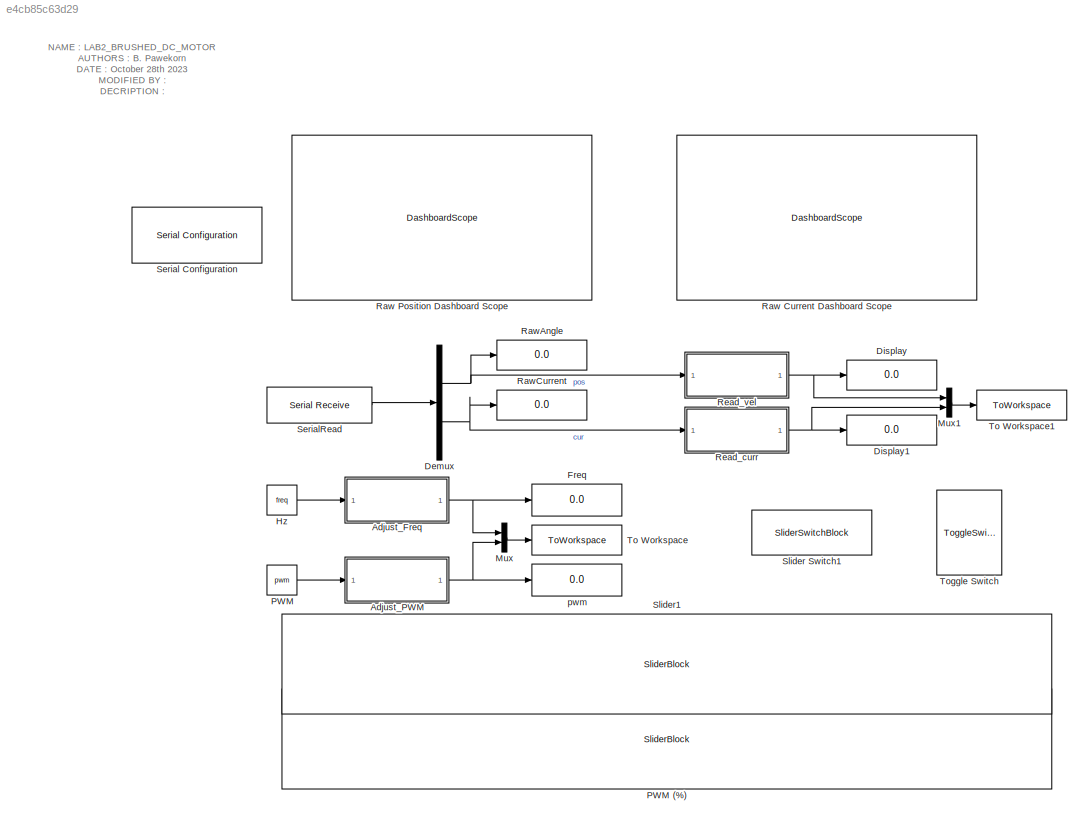
MODEL slx_e4cb85c63d29
KIND model
CONFIG AbsTol = auto
CONFIG EnableMultiTasking = on
CONFIG FixedStep = 1/200
CONFIG MaxStep = auto
CONFIG MinStep = auto
CONFIG RelTol = 1e-3
CONFIG SampleTimeConstraint = Unconstrained
CONFIG SolverName = FixedStepAuto
CONFIG StartTime = 0.0
CONFIG StopTime = inf
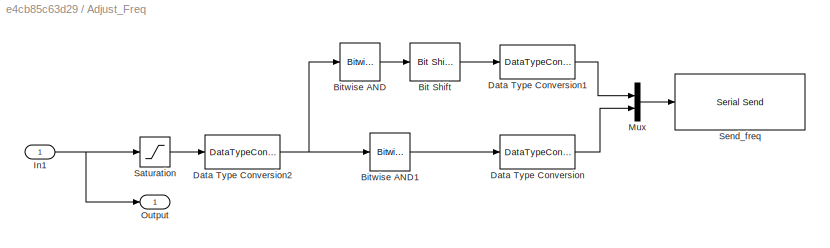
BLOCK [SubSystem] Adjust_Freq
BLOCK [Reference] Adjust_Freq/Bit Shift  REF=hdlsllib/Logic and Bit
Operations/Bit Shift
  SourceBlock = hdlsllib/Logic and Bit\nOperations/Bit Shift
  SourceType = Bit Shift
BLOCK [Reference] Adjust_Freq/Bitwise AND  REF=simulink/Logic and Bit
Operations/Bitwise
Operator
  SourceBlock = simulink/Logic and Bit\nOperations/Bitwise\nOperator
  SourceType = Bitwise Operator
BLOCK [Reference] Adjust_Freq/Bitwise AND1  REF=simulink/Logic and Bit
Operations/Bitwise
Operator
  SourceBlock = simulink/Logic and Bit\nOperations/Bitwise\nOperator
  SourceType = Bitwise Operator
BLOCK [DataTypeConversion] Adjust_Freq/Data Type Conversion
  OutDataTypeStr = uint8
  RndMeth = Floor
  SaturateOnIntegerOverflow = off
BLOCK [DataTypeConversion] Adjust_Freq/Data Type Conversion1
  OutDataTypeStr = uint8
  RndMeth = Floor
  SaturateOnIntegerOverflow = off
BLOCK [DataTypeConversion] Adjust_Freq/Data Type Conversion2
  OutDataTypeStr = uint16
  RndMeth = Floor
  SaturateOnIntegerOverflow = off
BLOCK [Inport] Adjust_Freq/In1
BLOCK [Mux] Adjust_Freq/Mux
  DisplayOption = bar
  Inputs = 2
BLOCK [Outport] Adjust_Freq/Output
BLOCK [Saturate] Adjust_Freq/Saturation
  LowerLimit = 5
  UpperLimit = 20000
BLOCK [Reference] Adjust_Freq/Send_freq  REF=instrumentseriallib/Serial Send
  Priority = 1
  SourceBlock = instrumentseriallib/Serial Send
  SourceType = system.SerialSend
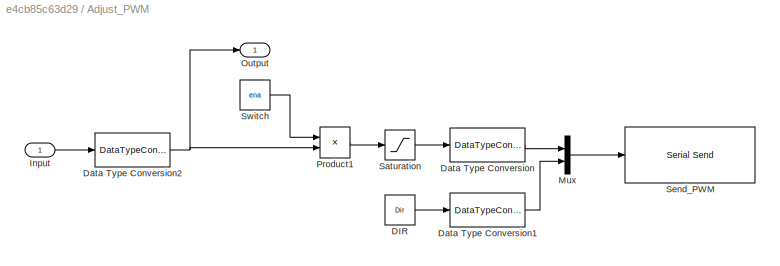
BLOCK [SubSystem] Adjust_PWM
BLOCK [Constant] Adjust_PWM/DIR 
  Value = Dir
BLOCK [DataTypeConversion] Adjust_PWM/Data Type Conversion
  OutDataTypeStr = uint8
  RndMeth = Floor
  SaturateOnIntegerOverflow = off
BLOCK [DataTypeConversion] Adjust_PWM/Data Type Conversion1
  OutDataTypeStr = uint8
  RndMeth = Floor
  SaturateOnIntegerOverflow = off
BLOCK [DataTypeConversion] Adjust_PWM/Data Type Conversion2
  RndMeth = Floor
  SaturateOnIntegerOverflow = off
BLOCK [Inport] Adjust_PWM/Input
BLOCK [Mux] Adjust_PWM/Mux
  DisplayOption = bar
  Inputs = 2
BLOCK [Outport] Adjust_PWM/Output
BLOCK [Product] Adjust_PWM/Product1
BLOCK [Saturate] Adjust_PWM/Saturation
  LowerLimit = 0
  UpperLimit = 200
BLOCK [Reference] Adjust_PWM/Send_PWM  REF=instrumentseriallib/Serial Send
  Priority = 1
  SourceBlock = instrumentseriallib/Serial Send
  SourceType = system.SerialSend
BLOCK [Constant] Adjust_PWM/Switch
  OutDataTypeStr = uint8
  Value = ena
BLOCK [Demux] Demux
  Outputs = 2
BLOCK [Display] Display
  Decimation = 1
BLOCK [Display] Display1
  Decimation = 1
BLOCK [Display] Freq
  Decimation = 1
  NameLocation = right
BLOCK [Constant] Hz
  OutDataTypeStr = double
  Value = freq
BLOCK [Mux] Mux
  DisplayOption = bar
  Inputs = 2
BLOCK [Mux] Mux1
  DisplayOption = bar
  Inputs = 2
BLOCK [Constant] PWM
  OutDataTypeStr = uint8
  Value = pwm
BLOCK [SliderBlock] PWM (%)
  LabelPosition = Hide
BLOCK [DashboardScope] Raw Current Dashboard Scope
  UpdateMode = Scroll
  Ymax = 300
  Ymin = 0
BLOCK [DashboardScope] Raw Position Dashboard Scope
  UpdateMode = Scroll
  Ymax = 300
  Ymin = 0
BLOCK [Display] RawAngle
  Decimation = 1
  NameLocation = right
BLOCK [Display] RawCurrent
  Decimation = 1
  NameLocation = right
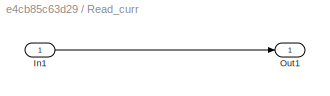
BLOCK [SubSystem] Read_curr
BLOCK [Inport] Read_curr/In1
BLOCK [Outport] Read_curr/Out1
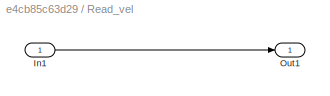
BLOCK [SubSystem] Read_vel
  NameLocation = top
BLOCK [Inport] Read_vel/In1
BLOCK [Outport] Read_vel/Out1
BLOCK [Reference] Serial Configuration  REF=instrumentseriallib/Serial Configuration
  LibrarySourceBlock = c2000lib/Host Communication/Serial Configuration
  Priority = -200000
  SourceBlock = instrumentseriallib/Serial Configuration
  SourceType = system.SerialConfiguration
BLOCK [Reference] SerialRead  REF=instrumentseriallib/Serial Receive
  LibrarySourceBlock = instrumentlib/Serial Receive
  Priority = 1
  SourceBlock = instrumentseriallib/Serial Receive
  SourceType = system.SerialReceive
BLOCK [SliderSwitchBlock] Slider Switch1
BLOCK [SliderBlock] Slider1
  LabelPosition = Hide
  ScaleMax = 20000
  ScaleMin = 5
  ScaleType = Log
BLOCK [ToWorkspace] To Workspace
  FixptAsFi = on
  MaxDataPoints = inf
  SampleTime = -1
  SaveFormat = Timeseries
  VariableName = input
BLOCK [ToWorkspace] To Workspace1
  FixptAsFi = on
  MaxDataPoints = inf
  SampleTime = -1
  SaveFormat = Timeseries
  VariableName = output
BLOCK [ToggleSwitchBlock] Toggle Switch
BLOCK [Display] pwm
  Decimation = 1
  NameLocation = right
ANNOTATION (root): NAME : LAB2_BRUSHED_DC_MOTOR AUTHORS : B. Pawekorn DATE : October 28th 2023 MODIFIED BY : DECRIPTION :
LINE Adjust_Freq/Bit Shift:1 -> Adjust_Freq/Data Type Conversion1:1
LINE Adjust_Freq/Bitwise AND1:1 -> Adjust_Freq/Data Type Conversion:1
LINE Adjust_Freq/Bitwise AND:1 -> Adjust_Freq/Bit Shift:1
LINE Adjust_Freq/Data Type Conversion1:1 -> Adjust_Freq/Mux:1
NET Adjust_Freq/Data Type Conversion2:1 -> Adjust_Freq/Bitwise AND1:1, Adjust_Freq/Bitwise AND:1
LINE Adjust_Freq/Data Type Conversion:1 -> Adjust_Freq/Mux:2
NET Adjust_Freq/In1:1 -> Adjust_Freq/Output:1, Adjust_Freq/Saturation:1
LINE Adjust_Freq/Mux:1 -> Adjust_Freq/Send_freq:1
LINE Adjust_Freq/Saturation:1 -> Adjust_Freq/Data Type Conversion2:1
NET Adjust_Freq:1 -> Freq:1, Mux:1
LINE Adjust_PWM/DIR :1 -> Adjust_PWM/Data Type Conversion1:1
LINE Adjust_PWM/Data Type Conversion1:1 -> Adjust_PWM/Mux:2
NET Adjust_PWM/Data Type Conversion2:1 -> Adjust_PWM/Output:1, Adjust_PWM/Product1:2
LINE Adjust_PWM/Data Type Conversion:1 -> Adjust_PWM/Mux:1
LINE Adjust_PWM/Input:1 -> Adjust_PWM/Data Type Conversion2:1
LINE Adjust_PWM/Mux:1 -> Adjust_PWM/Send_PWM:1
LINE Adjust_PWM/Product1:1 -> Adjust_PWM/Saturation:1
LINE Adjust_PWM/Saturation:1 -> Adjust_PWM/Data Type Conversion:1
LINE Adjust_PWM/Switch:1 -> Adjust_PWM/Product1:1
NET Adjust_PWM:1 -> Mux:2, pwm:1
NET Demux:1 -> RawAngle:1, Read_vel:1
NET Demux:2 -> RawCurrent:1, Read_curr:1
LINE Hz:1 -> Adjust_Freq:1
LINE Mux1:1 -> To Workspace1:1
LINE Mux:1 -> To Workspace:1
LINE PWM:1 -> Adjust_PWM:1
LINE Read_curr/In1:1 -> Read_curr/Out1:1
NET Read_curr:1 -> Display1:1, Mux1:2
LINE Read_vel/In1:1 -> Read_vel/Out1:1
NET Read_vel:1 -> Display:1, Mux1:1
LINE SerialRead:1 -> Demux:1
note: NET lines group one-source signal fan-out (src -> all destinations, sorted); 1:1 wires keep LINE
